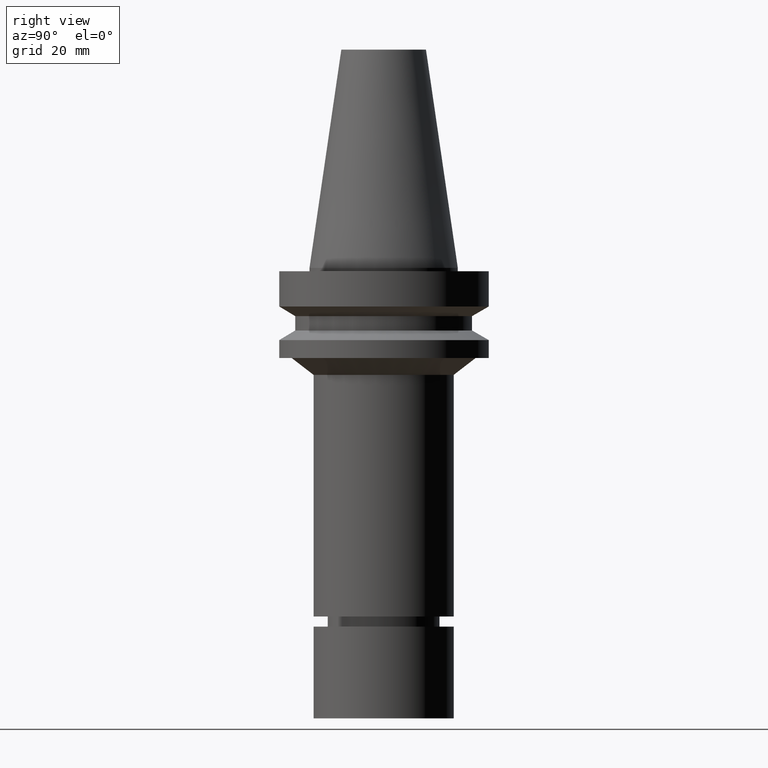
[diagram: clean part render]
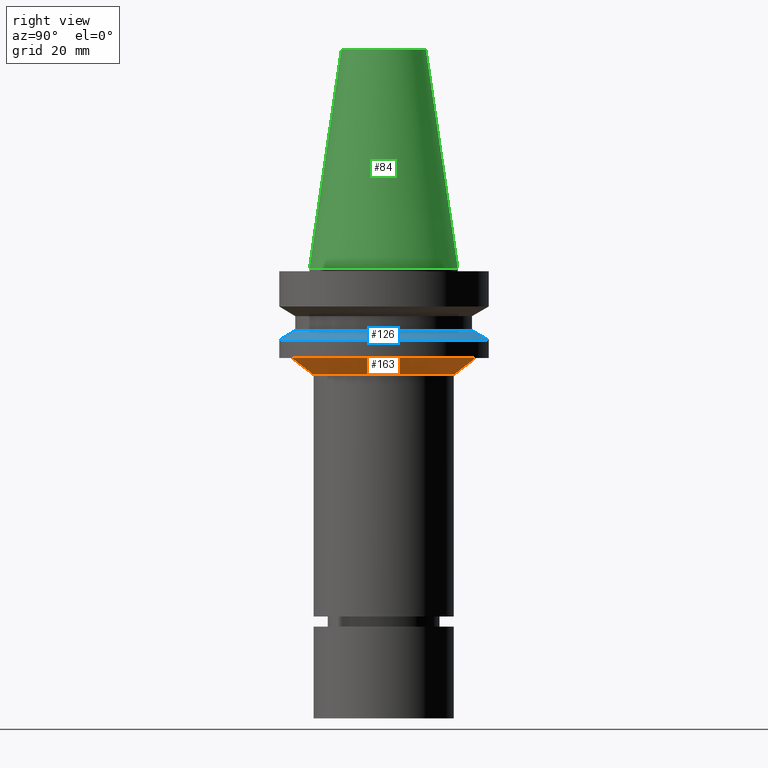
[diagram: same view with three faces highlighted in distinct colors, each labeled with its STEP entity id]
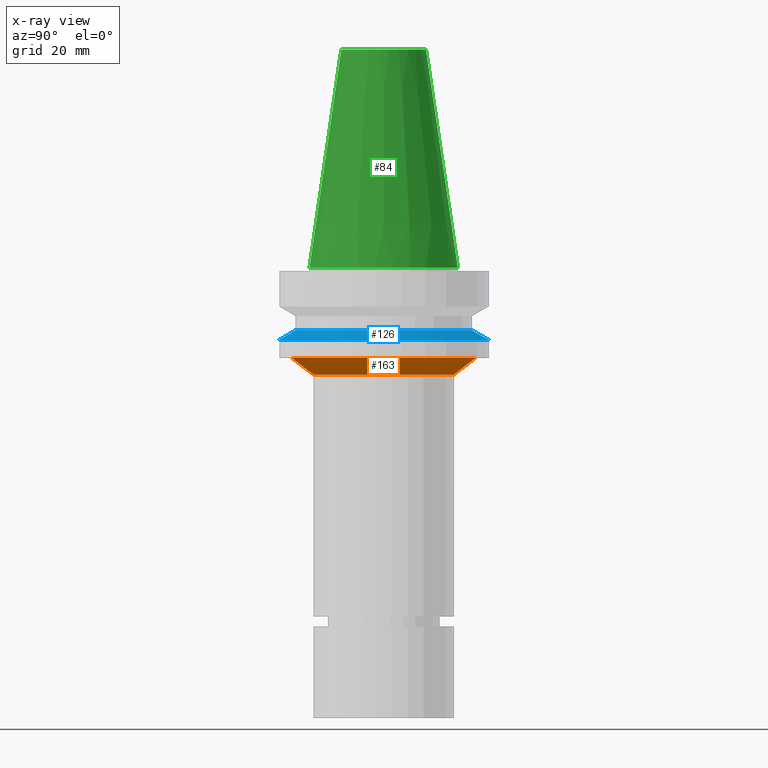
[diagram: x-ray of the same camera — body ghosted, the three highlighted faces saturated]
A machine part, right view with three faces highlighted in distinct colors.
The next image is the same camera in x-ray (body ghosted, the three faces saturated) — at least one of them is partly hidden behind the body in this view.
Their STEP definitions:

[orange] entity #163 — the highlighted conical surface has half-angle 52.381 deg.
#116=EDGE_CURVE('Unnamed[1]',#265,#265,#266,.T.);
#163=ADVANCED_FACE('Unnamed[1]',(#335,#336),#337,.T.);
#176=EDGE_CURVE('Unnamed[1]',#356,#356,#357,.T.);
#265=VERTEX_POINT('',#456);
#266=CIRCLE('',#457,21.0000000000004);
#335=FACE_BOUND('',#543,.T.);
#336=FACE_BOUND('',#544,.T.);
#337=CONICAL_SURFACE('',#545,24.285926013083,0.914225393497888);
#356=VERTEX_POINT('',#569);
#357=CIRCLE('',#570,27.5718520261655);
#456=CARTESIAN_POINT('',(1.96338026992049E-015,21.0000000000005,-32.0644331294128));
#457=AXIS2_PLACEMENT_3D('',#650,#651,#652);
#543=EDGE_LOOP('',(#727));
#544=EDGE_LOOP('',(#728));
#545=AXIS2_PLACEMENT_3D('',#729,#730,#731);
#569=CARTESIAN_POINT('',(1.65327317884891E-015,27.5718520261655,-26.9999999999998));
#570=AXIS2_PLACEMENT_3D('',#752,#753,#754);
#650=CARTESIAN_POINT('',(1.96338026992049E-015,6.79571872484049E-014,-32.0644331294128));
#651=DIRECTION('',(6.12323399573677E-017,-9.35480732737815E-017,-1.0));
#652=DIRECTION('',(9.01014694291352E-034,1.0,-9.35480732737815E-017));
#727=ORIENTED_EDGE('',*,*,#116,.F.);
#728=ORIENTED_EDGE('',*,*,#176,.T.);
#729=CARTESIAN_POINT('',(1.8083267243847E-015,6.81940712291453E-014,-29.5322165647063));
#730=DIRECTION('',(-6.12323399573677E-017,9.35480732738838E-017,1.0));
#731=DIRECTION('',(9.01014694293349E-034,1.0,-9.35480732738838E-017));
#752=CARTESIAN_POINT('',(1.65327317884891E-015,6.84309552098857E-014,-26.9999999999998));
#753=DIRECTION('',(6.12323399573677E-017,-9.35480732738445E-017,-1.0));
#754=DIRECTION('',(9.01014694288365E-034,1.0,-9.35480732738446E-017));

[blue] entity #126 — the highlighted conical surface has half-angle 60 deg.
#114=EDGE_CURVE('Unnamed[1]',#262,#262,#263,.T.);
#126=ADVANCED_FACE('Unnamed[1]',(#280,#281),#282,.T.);
#139=EDGE_CURVE('Unnamed[1]',#301,#301,#302,.T.);
#262=VERTEX_POINT('',#452);
#263=CIRCLE('',#453,26.5);
#280=FACE_BOUND('',#475,.T.);
#281=FACE_BOUND('',#476,.T.);
#282=CONICAL_SURFACE('',#477,29.0000000000003,1.04719755119651);
#301=VERTEX_POINT('',#501);
#302=CIRCLE('',#502,31.5000000000006);
#452=CARTESIAN_POINT('',(1.1479681728942E-015,26.5,-18.7477430013855));
#453=AXIS2_PLACEMENT_3D('',#647,#648,#649);
#475=EDGE_LOOP('',(#666));
#476=EDGE_LOOP('',(#667));
#477=AXIS2_PLACEMENT_3D('',#668,#669,#670);
#501=CARTESIAN_POINT('',(1.32473071268174E-015,31.5000000000007,-21.6344943473346));
#502=AXIS2_PLACEMENT_3D('',#691,#692,#693);
#647=CARTESIAN_POINT('',(1.1479681728942E-015,6.92029379522665E-014,-18.7477430013855));
#648=DIRECTION('',(6.12323399573677E-017,-9.35480732738474E-017,-1.0));
#649=DIRECTION('',(9.01014694294111E-034,1.0,-9.35480732738474E-017));
#666=ORIENTED_EDGE('',*,*,#139,.F.);
#667=ORIENTED_EDGE('',*,*,#114,.T.);
#668=CARTESIAN_POINT('',(1.23634944278797E-015,6.90679129390494E-014,-20.1911186743601));
#669=DIRECTION('',(6.12323399573677E-017,-9.35480732738673E-017,-1.0));
#670=DIRECTION('',(9.01014694291066E-034,1.0,-9.35480732738673E-017));
#691=CARTESIAN_POINT('',(1.32473071268174E-015,6.89328879258323E-014,-21.6344943473346));
#692=DIRECTION('',(6.12323399573677E-017,-9.35480732737815E-017,-1.0));
#693=DIRECTION('',(9.01014694294199E-034,1.0,-9.35480732737815E-017));

[green] entity #84 — the highlighted conical surface has half-angle 8.297 deg.
#84=ADVANCED_FACE('Unnamed[1]',(#215,#216),#217,.T.);
#91=EDGE_CURVE('Unnamed[1]',#225,#225,#226,.T.);
#180=EDGE_CURVE('Unnamed[1]',#362,#362,#363,.T.);
#215=FACE_BOUND('',#394,.T.);
#216=FACE_BOUND('',#395,.T.);
#217=CONICAL_SURFACE('',#396,17.45625,0.144812498238936);
#225=VERTEX_POINT('',#406);
#226=CIRCLE('',#407,12.6875000000001);
#362=VERTEX_POINT('',#577);
#363=CIRCLE('',#578,22.225);
#394=EDGE_LOOP('',(#596));
#395=EDGE_LOOP('',(#597));
#396=AXIS2_PLACEMENT_3D('',#598,#599,#600);
#406=CARTESIAN_POINT('',(-4.00459503321185E-015,12.6875000000002,65.4000000000001));
#407=AXIS2_PLACEMENT_3D('',#605,#606,#607);
#577=CARTESIAN_POINT('',(1.71319921032766E-029,22.2250000000001,-2.8153873565375E-013));
#578=AXIS2_PLACEMENT_3D('',#758,#759,#760);
#596=ORIENTED_EDGE('',*,*,#180,.F.);
#597=ORIENTED_EDGE('',*,*,#91,.T.);
#598=CARTESIAN_POINT('',(-2.00229751660592E-015,7.40157751843334E-014,32.6999999999999));
#599=DIRECTION('',(6.12323399573677E-017,-9.3548073273804E-017,-1.0));
#600=DIRECTION('',(9.01014694280386E-034,1.0,-9.3548073273804E-017));
#605=CARTESIAN_POINT('',(-4.00459503321185E-015,7.70747971803877E-014,65.4000000000001));
#606=DIRECTION('',(6.12323399573677E-017,-9.35480732738356E-017,-1.0));
#607=DIRECTION('',(9.01014694292835E-034,1.0,-9.35480732738356E-017));
#758=CARTESIAN_POINT('',(1.74032777401202E-029,7.09567531882791E-014,-2.8421709430404E-013));
#759=DIRECTION('',(6.12323399573677E-017,-9.35480732738586E-017,-1.0));
#760=DIRECTION('',(9.01014694293456E-034,1.0,-9.35480732738586E-017));